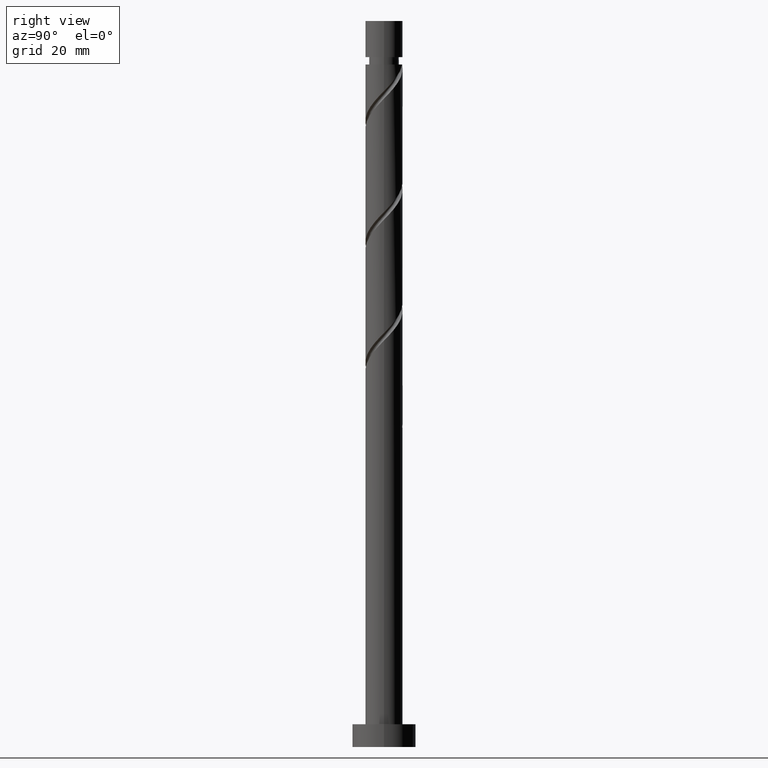
[diagram: clean part render]
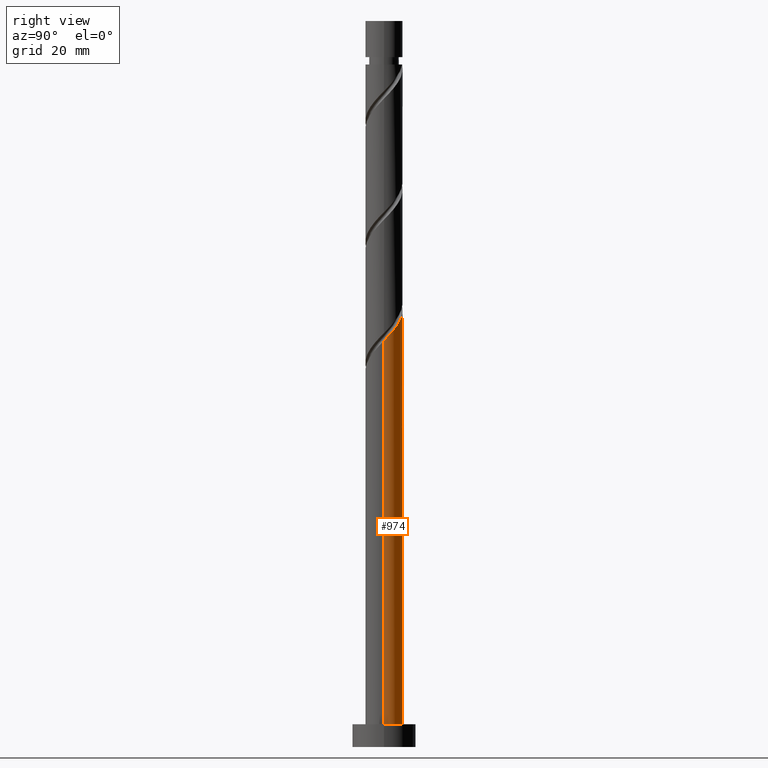
[diagram: same view with one face highlighted and labeled with its STEP entity id]
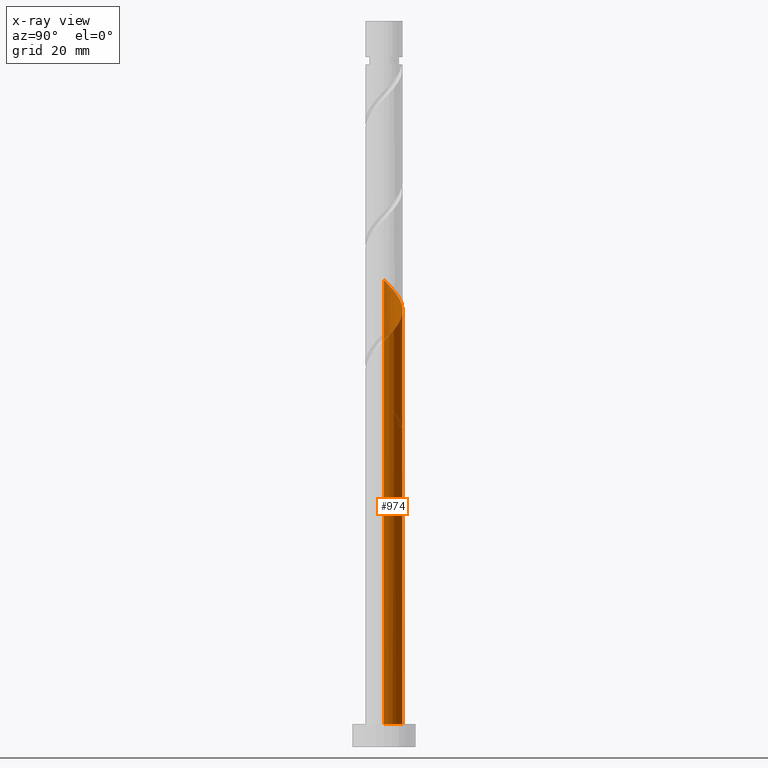
[diagram: x-ray of the same camera — body ghosted, the highlighted face saturated]
A machine part, right view. The second image highlights one B-rep face of the part: STEP entity #974.
The next image is the same camera in x-ray: the body ghosted, the highlighted face saturated — about 0% of this face is hidden behind the body in this view.
In plain terms, the highlighted cylindrical surface (edge-blend (fillet) strip) has radius 4.1 mm, axis along (-0, -0, -1).
Its self-contained STEP definition (entity closure, byte-faithful):
#46 = CARTESIAN_POINT ( 'NONE',  ( -1.485924713333949043, 3.821259968427091369, 72.83252729250901325 ) ) ;
#75 = CARTESIAN_POINT ( 'NONE',  ( -4.100000000000004086, 0.4695686022790118153, 75.73953710266107464 ) ) ;
#80 = DIRECTION ( 'NONE',  ( -1.000000000000000000, 0.000000000000000000, 0.000000000000000000 ) ) ;
#91 = DIRECTION ( 'NONE',  ( -0.000000000000000000, -0.000000000000000000, -1.000000000000000000 ) ) ;
#93 = EDGE_LOOP ( 'NONE', ( #154, #970, #1050, #846, #429, #291, #125, #771 ) ) ;
#95 = CARTESIAN_POINT ( 'NONE',  ( -0.2381885131556249202, 4.135307228927973533, 96.46889092887262507 ) ) ;
#102 = CARTESIAN_POINT ( 'NONE',  ( 1.485924713333951042, 3.821259968427094922, 94.65070911069081205 ) ) ;
#125 = ORIENTED_EDGE ( 'NONE', *, *, #1631, .F. ) ;
#126 = EDGE_CURVE ( 'NONE', #1394, #1382, #580, .T. ) ;
#154 = ORIENTED_EDGE ( 'NONE', *, *, #560, .F. ) ;
#162 = VERTEX_POINT ( 'NONE', #845 ) ;
#182 = CARTESIAN_POINT ( 'NONE',  ( -3.315968527654118425, 2.411296896611316853, 75.25676971675140692 ) ) ;
#184 = CARTESIAN_POINT ( 'NONE',  ( -0.8158896984274280895, 4.018000000000004235, 70.40828486826657695 ) ) ;
#206 = CIRCLE ( 'NONE', #870, 4.099999999999999645 ) ;
#222 = CARTESIAN_POINT ( 'NONE',  ( 4.093215763958131248, 0.2357640975311764975, 89.80222426220596788 ) ) ;
#241 = DIRECTION ( 'NONE',  ( -0.000000000000000000, -0.000000000000000000, -1.000000000000000000 ) ) ;
#249 = CARTESIAN_POINT ( 'NONE',  ( 3.662660681764273285, 1.934532598764185485, 91.62040608038778089 ) ) ;
#291 = ORIENTED_EDGE ( 'NONE', *, *, #126, .T. ) ;
#302 =( BOUNDED_CURVE ( )  B_SPLINE_CURVE ( 2, ( #736, #1131, #222, #344, #631, #249, #1140, #1630, #852, #487, #102, #859, #479, #95, #1662, #1393, #1108, #624, #973, #1498, #1122, #337, #1007, #1526, #1368 ),
 .UNSPECIFIED., .F., .T. ) 
 B_SPLINE_CURVE_WITH_KNOTS ( ( 3, 2, 2, 2, 2, 2, 2, 2, 2, 2, 2, 2, 3 ),
 ( 0.1795252162417512731, 0.1818181818181817677, 0.1931818181818182323, 0.2045454545454545858, 0.2159090909090909394, 0.2272727272727272929, 0.2386363636363636465, 0.2500000000000000000, 0.2613636363636363535, 0.2727272727272727071, 0.2840909090909090606, 0.2954545454545454142, 0.3045252162417512176 ),
 .UNSPECIFIED. ) 
 CURVE ( )  GEOMETRIC_REPRESENTATION_ITEM ( )  RATIONAL_B_SPLINE_CURVE ( ( 0.9061101570135609018, 0.9072237824201430101, 0.9090909090909204959, 0.8998376744372229563, 0.9090909090909204959, 0.8998376744372229563, 0.9090909090909204959, 0.8998376744372229563, 0.9090909090909204959, 0.8998376744372229563, 0.9090909090909204959, 0.8998376744372229563, 0.9090909090909204959, 0.8998376744372229563, 0.9090909090909204959, 0.8998376744372229563, 0.9090909090909204959, 0.8998376744372229563, 0.9090909090909204959, 0.8998376744372229563, 0.9090909090909204959, 0.8998376744372229563, 0.9090909090909204959, 0.9017048011080004422, 0.9061101570135607908 ) ) 
 REPRESENTATION_ITEM ( '' )  );
#308 = CARTESIAN_POINT ( 'NONE',  ( -4.100000000000000533, 3.499896044618180531E-15, 77.92440601423412261 ) ) ;
#311 = CARTESIAN_POINT ( 'NONE',  ( -4.093215763958126807, 0.2357640975311775799, 77.68101214099382901 ) ) ;
#317 = CARTESIAN_POINT ( 'NONE',  ( -4.100000000000004974, -2.497789057483899821E-15, 102.8921637222990029 ) ) ;
#321 = LINE ( 'NONE', #1333, #1527 ) ;
#327 = CARTESIAN_POINT ( 'NONE',  ( -3.281236982628831456, 2.528039459591577387, 73.43858789856957969 ) ) ;
#337 = CARTESIAN_POINT ( 'NONE',  ( -3.860554850343159039, 1.501204813779631664, 101.3173757773574550 ) ) ;
#344 = CARTESIAN_POINT ( 'NONE',  ( 4.059318004229832688, 0.8242796770264073647, 90.40828486826657695 ) ) ;
#354 = VECTOR ( 'NONE', #241, 1000.000000000000000 ) ;
#428 = CARTESIAN_POINT ( 'NONE',  ( -3.860989342997047213, 1.379406137895296203, 76.46889092887263928 ) ) ;
#429 = ORIENTED_EDGE ( 'NONE', *, *, #1201, .F. ) ;
#448 = CARTESIAN_POINT ( 'NONE',  ( -2.969276373543969338, 2.888061194458450220, 74.65070911069082626 ) ) ;
#449 = VERTEX_POINT ( 'NONE', #1454 ) ;
#451 = CARTESIAN_POINT ( 'NONE',  ( -2.858664895739234879, 2.939053421404283384, 72.83252729250899904 ) ) ;
#458 = CARTESIAN_POINT ( 'NONE',  ( 4.099999999999999645, 5.021051876504147385E-16, 5.000000000000000000 ) ) ;
#479 = CARTESIAN_POINT ( 'NONE',  ( 0.3491609805032967473, 4.085105458821597146, 95.86283032281203020 ) ) ;
#484 = LINE ( 'NONE', #1513, #791 ) ;
#487 = CARTESIAN_POINT ( 'NONE',  ( 2.035338952505684862, 3.607616248138969972, 94.04464850463020298 ) ) ;
#509 = VERTEX_POINT ( 'NONE', #308 ) ;
#515 = VERTEX_POINT ( 'NONE', #317 ) ;
#559 = CARTESIAN_POINT ( 'NONE',  ( -3.570895916485996580, 2.014622136685604747, 74.04464850463018877 ) ) ;
#560 = EDGE_CURVE ( 'NONE', #1353, #515, #302, .T. ) ;
#580 = CIRCLE ( 'NONE', #998, 4.099999999999999645 ) ;
#594 = EDGE_CURVE ( 'NONE', #515, #509, #751, .T. ) ;
#607 = CARTESIAN_POINT ( 'NONE',  ( -4.099999999999999645, 0.000000000000000000, 160.0000000000000000 ) ) ;
#624 = CARTESIAN_POINT ( 'NONE',  ( -2.436092808849637859, 3.350067383216989381, 98.89313335311506137 ) ) ;
#631 = CARTESIAN_POINT ( 'NONE',  ( 3.860989342997054319, 1.379406137895296203, 91.01434547432718603 ) ) ;
#637 = DIRECTION ( 'NONE',  ( 0.000000000000000000, 0.000000000000000000, 1.000000000000000000 ) ) ;
#646 = CARTESIAN_POINT ( 'NONE',  ( 0.000000000000000000, 0.000000000000000000, 5.000000000000000000 ) ) ;
#681 = DIRECTION ( 'NONE',  ( -1.000000000000000000, 0.000000000000000000, 0.000000000000000000 ) ) ;
#711 = CARTESIAN_POINT ( 'NONE',  ( -2.436092808849637859, 3.350067383216989381, 72.22646668644836154 ) ) ;
#733 = CARTESIAN_POINT ( 'NONE',  ( 4.100000000000004974, 2.348220850448935583E-15, 89.55883038896567427 ) ) ;
#736 = CARTESIAN_POINT ( 'NONE',  ( 4.100000000000004974, 2.348220850448935583E-15, 89.55883038896567427 ) ) ;
#751 = LINE ( 'NONE', #607, #354 ) ;
#771 = ORIENTED_EDGE ( 'NONE', *, *, #594, .F. ) ;
#791 = VECTOR ( 'NONE', #91, 1000.000000000000000 ) ;
#820 = CARTESIAN_POINT ( 'NONE',  ( -3.662660681764268400, 1.934532598764185041, 75.86283032281203020 ) ) ;
#841 = CARTESIAN_POINT ( 'NONE',  ( -4.100000000000004974, -2.497789057483899821E-15, 76.22549705563235989 ) ) ;
#845 = CARTESIAN_POINT ( 'NONE',  ( -4.099999999999999645, 0.000000000000000000, 5.000000000000000000 ) ) ;
#846 = ORIENTED_EDGE ( 'NONE', *, *, #1125, .F. ) ;
#852 = CARTESIAN_POINT ( 'NONE',  ( 2.502307663024828432, 3.247838721298712095, 93.43858789856956548 ) ) ;
#859 = CARTESIAN_POINT ( 'NONE',  ( 0.9365104741622185536, 4.034903688715220760, 95.25676971675142113 ) ) ;
#861 = DIRECTION ( 'NONE',  ( 0.000000000000000000, -0.000000000000000000, -1.000000000000000000 ) ) ;
#870 = AXIS2_PLACEMENT_3D ( 'NONE', #646, #637, #1163 ) ;
#938 = CARTESIAN_POINT ( 'NONE',  ( -2.502307663024826656, 3.247838721298707654, 74.04464850463021719 ) ) ;
#954 = CARTESIAN_POINT ( 'NONE',  ( -0.9365104741622166662, 4.034903688715216319, 72.22646668644837575 ) ) ;
#970 = ORIENTED_EDGE ( 'NONE', *, *, #1330, .T. ) ;
#973 = CARTESIAN_POINT ( 'NONE',  ( -2.858664895739234879, 2.939053421404283384, 99.49919395917565623 ) ) ;
#974 = ADVANCED_FACE ( 'NONE', ( #1033 ), #1305, .T. ) ;
#985 = CARTESIAN_POINT ( 'NONE',  ( 0.000000000000000000, 0.000000000000000000, 70.40828486826657695 ) ) ;
#998 = AXIS2_PLACEMENT_3D ( 'NONE', #985, #861, #80 ) ;
#1007 = CARTESIAN_POINT ( 'NONE',  ( -3.993834187014794423, 0.9269781478718429613, 101.9234363834180641 ) ) ;
#1011 = CARTESIAN_POINT ( 'NONE',  ( 0.8158896984274295328, 4.017999999999998906, 70.40828486826657695 ) ) ;
#1028 = VERTEX_POINT ( 'NONE', #458 ) ;
#1031 = CARTESIAN_POINT ( 'NONE',  ( -0.8158896984274280895, 4.018000000000004235, 70.40828486826657695 ) ) ;
#1033 = FACE_OUTER_BOUND ( 'NONE', #93, .T. ) ;
#1050 = ORIENTED_EDGE ( 'NONE', *, *, #1572, .T. ) ;
#1064 = CARTESIAN_POINT ( 'NONE',  ( -3.860554850343159039, 1.501204813779631664, 74.65070911069079784 ) ) ;
#1105 = AXIS2_PLACEMENT_3D ( 'NONE', #1417, #1287, #681 ) ;
#1108 = CARTESIAN_POINT ( 'NONE',  ( -1.914841846274434767, 3.625380077144511493, 98.28707274705445229 ) ) ;
#1122 = CARTESIAN_POINT ( 'NONE',  ( -3.570895916485996580, 2.014622136685604747, 100.7113151712968744 ) ) ;
#1125 = EDGE_CURVE ( 'NONE', #449, #162, #321, .T. ) ;
#1131 = CARTESIAN_POINT ( 'NONE',  ( 4.100000000000004974, 0.1179796587476699132, 89.68092839368389946 ) ) ;
#1140 = CARTESIAN_POINT ( 'NONE',  ( 3.315968527654123754, 2.411296896611318630, 92.22646668644838996 ) ) ;
#1163 = DIRECTION ( 'NONE',  ( 1.000000000000000000, 0.000000000000000000, 0.000000000000000000 ) ) ;
#1164 =( BOUNDED_CURVE ( )  B_SPLINE_CURVE ( 2, ( #184, #1356, #1603, #711, #451, #327, #559, #1064, #1588, #75, #841 ),
 .UNSPECIFIED., .F., .T. ) 
 B_SPLINE_CURVE_WITH_KNOTS ( ( 3, 2, 2, 2, 2, 3 ),
 ( 0.000000000000000000, 0.01136363636363635181, 0.02272727272727270362, 0.03409090909090906063, 0.04545454545454540723, 0.05452521624175116211 ),
 .UNSPECIFIED. ) 
 CURVE ( )  GEOMETRIC_REPRESENTATION_ITEM ( )  RATIONAL_B_SPLINE_CURVE ( ( 0.9090909090909204959, 0.8998376744372229563, 0.9090909090909204959, 0.8998376744372229563, 0.9090909090909204959, 0.8998376744372229563, 0.9090909090909204959, 0.8998376744372229563, 0.9090909090909204959, 0.9017048011080004422, 0.9061101570135606798 ) ) 
 REPRESENTATION_ITEM ( '' )  );
#1182 = CARTESIAN_POINT ( 'NONE',  ( -0.3491609805032953595, 4.085105458821591817, 71.62040608038780931 ) ) ;
#1201 = EDGE_CURVE ( 'NONE', #1394, #449, #1164, .T. ) ;
#1220 =( BOUNDED_CURVE ( )  B_SPLINE_CURVE ( 2, ( #1474, #1586, #311, #1458, #428, #820, #182, #448, #938, #1328, #46, #954, #1182, #1320, #1600 ),
 .UNSPECIFIED., .F., .T. ) 
 B_SPLINE_CURVE_WITH_KNOTS ( ( 3, 2, 2, 2, 2, 2, 2, 3 ),
 ( 0.9295252162417512176, 0.9318181818181817677, 0.9431818181818182323, 0.9545454545454545858, 0.9659090909090909394, 0.9772727272727272929, 0.9886363636363636465, 1.000000000000000000 ),
 .UNSPECIFIED. ) 
 CURVE ( )  GEOMETRIC_REPRESENTATION_ITEM ( )  RATIONAL_B_SPLINE_CURVE ( ( 0.9061101570135553507, 0.9072237824201374590, 0.9090909090909150558, 0.8998376744372174052, 0.9090909090909150558, 0.8998376744372174052, 0.9090909090909150558, 0.8998376744372174052, 0.9090909090909150558, 0.8998376744372174052, 0.9090909090909150558, 0.8998376744372174052, 0.9090909090909150558, 0.8998376744372174052, 0.9090909090909150558 ) ) 
 REPRESENTATION_ITEM ( '' )  );
#1287 = DIRECTION ( 'NONE',  ( -0.000000000000000000, -0.000000000000000000, -1.000000000000000000 ) ) ;
#1305 = CYLINDRICAL_SURFACE ( 'NONE', #1105, 4.099999999999999645 ) ;
#1320 = CARTESIAN_POINT ( 'NONE',  ( 0.2381885131556257806, 4.135307228927969092, 71.01434547432717181 ) ) ;
#1328 = CARTESIAN_POINT ( 'NONE',  ( -2.035338952505683086, 3.607616248138966419, 73.43858789856962233 ) ) ;
#1330 = EDGE_CURVE ( 'NONE', #1353, #1028, #484, .T. ) ;
#1333 = CARTESIAN_POINT ( 'NONE',  ( -4.099999999999999645, 0.000000000000000000, 160.0000000000000000 ) ) ;
#1347 = DIRECTION ( 'NONE',  ( -0.000000000000000000, -0.000000000000000000, -1.000000000000000000 ) ) ;
#1353 = VERTEX_POINT ( 'NONE', #733 ) ;
#1356 = CARTESIAN_POINT ( 'NONE',  ( -1.393590883699232341, 3.900692771072034937, 71.01434547432717181 ) ) ;
#1368 = CARTESIAN_POINT ( 'NONE',  ( -4.100000000000004974, -2.497789057483899821E-15, 102.8921637222990029 ) ) ;
#1382 = VERTEX_POINT ( 'NONE', #1011 ) ;
#1393 = CARTESIAN_POINT ( 'NONE',  ( -1.393590883699232341, 3.900692771072034937, 97.68101214099380059 ) ) ;
#1394 = VERTEX_POINT ( 'NONE', #1031 ) ;
#1417 = CARTESIAN_POINT ( 'NONE',  ( 0.000000000000000000, 0.000000000000000000, 160.0000000000000000 ) ) ;
#1454 = CARTESIAN_POINT ( 'NONE',  ( -4.100000000000004974, -2.497789057483899821E-15, 76.22549705563234568 ) ) ;
#1458 = CARTESIAN_POINT ( 'NONE',  ( -4.059318004229828247, 0.8242796770264079198, 77.07495153493324835 ) ) ;
#1474 = CARTESIAN_POINT ( 'NONE',  ( -4.100000000000000533, 3.499896044618180531E-15, 77.92440601423412261 ) ) ;
#1498 = CARTESIAN_POINT ( 'NONE',  ( -3.281236982628831456, 2.528039459591577387, 100.1052545652362369 ) ) ;
#1513 = CARTESIAN_POINT ( 'NONE',  ( 4.099999999999999645, 5.021051876504147385E-16, 160.0000000000000000 ) ) ;
#1526 = CARTESIAN_POINT ( 'NONE',  ( -4.100000000000004086, 0.4695686022790090952, 102.4062037693276892 ) ) ;
#1527 = VECTOR ( 'NONE', #1347, 1000.000000000000000 ) ;
#1572 = EDGE_CURVE ( 'NONE', #1028, #162, #206, .T. ) ;
#1586 = CARTESIAN_POINT ( 'NONE',  ( -4.100000000000000533, 0.1179796587476682063, 77.80230800951589742 ) ) ;
#1588 = CARTESIAN_POINT ( 'NONE',  ( -3.993834187014794423, 0.9269781478718429613, 75.25676971675140692 ) ) ;
#1600 = CARTESIAN_POINT ( 'NONE',  ( 0.8158896984274295328, 4.017999999999998906, 70.40828486826657695 ) ) ;
#1603 = CARTESIAN_POINT ( 'NONE',  ( -1.914841846274434767, 3.625380077144511493, 71.62040608038778089 ) ) ;
#1630 = CARTESIAN_POINT ( 'NONE',  ( 2.969276373543974223, 2.888061194458451997, 92.83252729250895641 ) ) ;
#1631 = EDGE_CURVE ( 'NONE', #509, #1382, #1220, .T. ) ;
#1662 = CARTESIAN_POINT ( 'NONE',  ( -0.8158896984274280895, 4.018000000000004235, 97.07495153493324835 ) ) ;